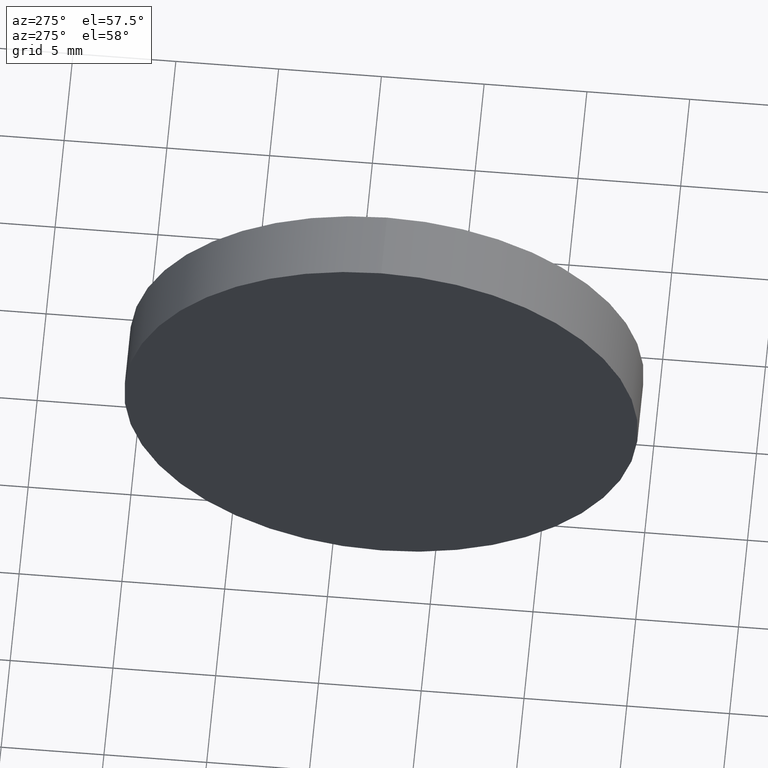
[diagram: clean part render]
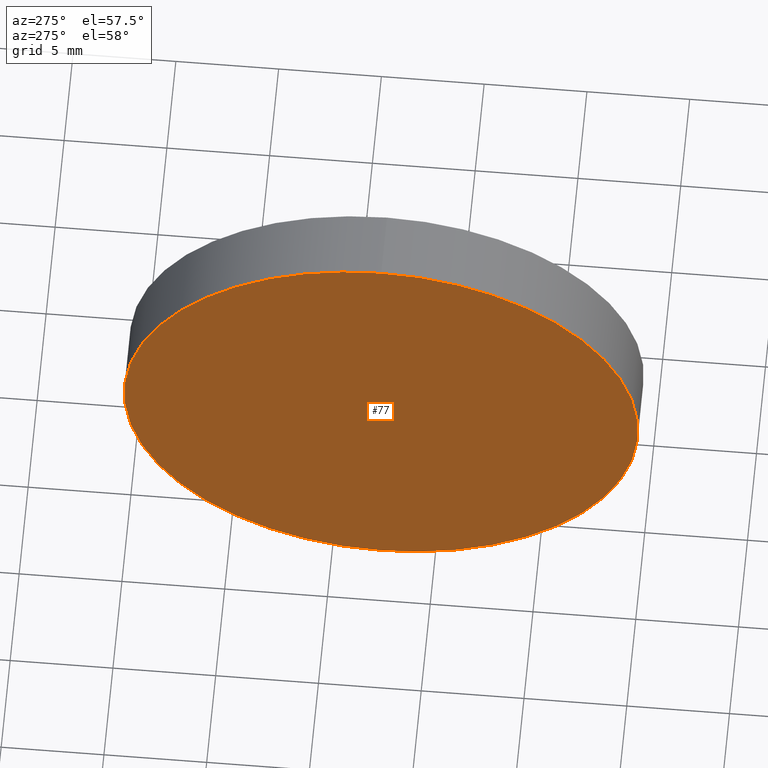
[diagram: same view with one face highlighted and labeled with its STEP entity id]
A machine part, auxiliary view. The second image highlights one B-rep face of the part: STEP entity #77.
In plain terms, the highlighted planar face has unit normal (1, 0, 0).
Its self-contained STEP definition (entity closure, byte-faithful):
#3 = CIRCLE ( 'NONE', #159, 12.49999999999999600 ) ;
#6 = CARTESIAN_POINT ( 'NONE',  ( 57.53233705252611700, 32.61076812922678400, 12.49999999999999600 ) ) ;
#16 = DIRECTION ( 'NONE',  ( 0.0000000000000000000, 0.0000000000000000000, 1.000000000000000000 ) ) ;
#17 = DIRECTION ( 'NONE',  ( 0.0000000000000000000, 0.0000000000000000000, -1.000000000000000000 ) ) ;
#24 = AXIS2_PLACEMENT_3D ( 'NONE', #71, #32, #17 ) ;
#26 = EDGE_LOOP ( 'NONE', ( #68, #58 ) ) ;
#29 = VERTEX_POINT ( 'NONE', #56 ) ;
#32 = DIRECTION ( 'NONE',  ( 1.000000000000000000, 0.0000000000000000000, 0.0000000000000000000 ) ) ;
#33 = EDGE_CURVE ( 'NONE', #29, #131, #3, .T. ) ;
#44 = DIRECTION ( 'NONE',  ( 0.0000000000000000000, 0.0000000000000000000, 1.000000000000000000 ) ) ;
#46 = CARTESIAN_POINT ( 'NONE',  ( 57.53233705252611700, 32.61076812922678400, 0.0000000000000000000 ) ) ;
#56 = CARTESIAN_POINT ( 'NONE',  ( 57.53233705252611700, 32.61076812922678400, -12.49999999999999600 ) ) ;
#58 = ORIENTED_EDGE ( 'NONE', *, *, #33, .T. ) ;
#66 = AXIS2_PLACEMENT_3D ( 'NONE', #46, #137, #16 ) ;
#68 = ORIENTED_EDGE ( 'NONE', *, *, #155, .T. ) ;
#70 = CARTESIAN_POINT ( 'NONE',  ( 57.53233705252611700, 32.61076812922678400, 0.0000000000000000000 ) ) ;
#71 = CARTESIAN_POINT ( 'NONE',  ( 57.53233705252611700, 32.61076812922678400, 0.0000000000000000000 ) ) ;
#77 = ADVANCED_FACE ( 'NONE', ( #79 ), #125, .F. ) ;
#79 = FACE_OUTER_BOUND ( 'NONE', #26, .T. ) ;
#95 = CIRCLE ( 'NONE', #66, 12.49999999999999600 ) ;
#125 = PLANE ( 'NONE',  #24 ) ;
#131 = VERTEX_POINT ( 'NONE', #6 ) ;
#132 = DIRECTION ( 'NONE',  ( -1.000000000000000000, -0.0000000000000000000, -0.0000000000000000000 ) ) ;
#137 = DIRECTION ( 'NONE',  ( -1.000000000000000000, -0.0000000000000000000, -0.0000000000000000000 ) ) ;
#155 = EDGE_CURVE ( 'NONE', #131, #29, #95, .T. ) ;
#159 = AXIS2_PLACEMENT_3D ( 'NONE', #70, #132, #44 ) ;